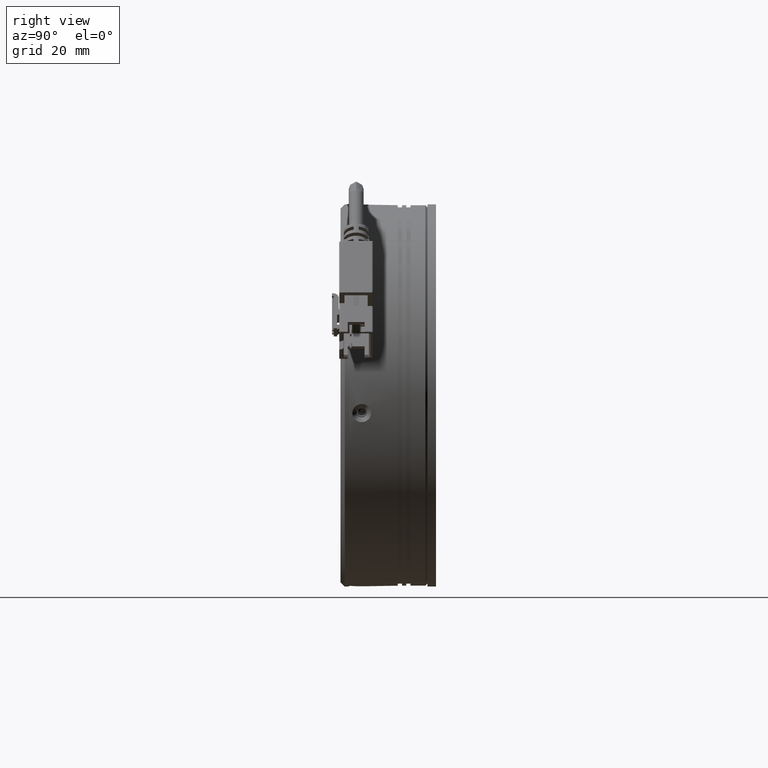
[diagram: clean part render]
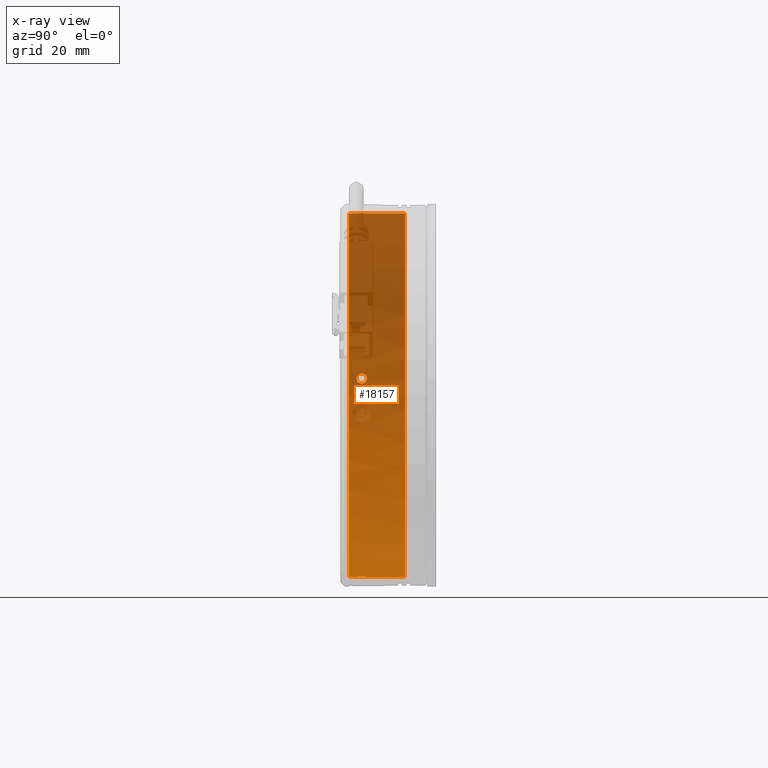
[diagram: x-ray — body ghosted, one internal face saturated and labeled with its STEP entity id]
A machine part, right view, then the same camera in x-ray: the body is ghosted and one INTERNAL B-rep face — a face not visible from any outside direction — is saturated and labeled: STEP entity #18157.
In plain terms, the highlighted cylindrical surface (partial cylindrical patch) has radius 43 mm, axis along (0, -1, 0).
Its self-contained STEP definition (entity closure, byte-faithful):
#534 = CARTESIAN_POINT ( 'NONE',  ( -53.99004085520083900, 10.11989054203920400, -3.797922368083184200 ) ) ;
#609 = CARTESIAN_POINT ( 'NONE',  ( -96.85751770825967800, 22.52740794203347700, -0.4214931607460495900 ) ) ;
#1703 = VERTEX_POINT ( 'NONE', #89147 ) ;
#2559 = ORIENTED_EDGE ( 'NONE', *, *, #53149, .F. ) ;
#2866 = CARTESIAN_POINT ( 'NONE',  ( -96.80562336960153400, 31.65322862557684400, 0.1802548467408904300 ) ) ;
#3951 = EDGE_CURVE ( 'NONE', #48209, #67110, #70471, .T. ) ;
#4386 = FACE_OUTER_BOUND ( 'NONE', #103290, .T. ) ;
#4554 = CARTESIAN_POINT ( 'NONE',  ( -51.20826733921226300, 21.47876601230221300, 39.11200347787633500 ) ) ;
#4925 = AXIS2_PLACEMENT_3D ( 'NONE', #45551, #118412, #56072 ) ;
#5431 = CARTESIAN_POINT ( 'NONE',  ( -57.96821724117763400, 18.47876601230220900, -46.61350495949558600 ) ) ;
#5768 = CARTESIAN_POINT ( 'NONE',  ( -96.80954510899997000, 31.67876601095487400, 0.1379331521673202200 ) ) ;
#6143 = EDGE_CURVE ( 'NONE', #84855, #113624, #36980, .T. ) ;
#6817 = CARTESIAN_POINT ( 'NONE',  ( -51.05703077552374200, 22.08324953597088200, 39.10197360459402200 ) ) ;
#7248 = CARTESIAN_POINT ( 'NONE',  ( -57.96821724117763400, 22.67876601230220100, -46.61350495949558600 ) ) ;
#7255 = CARTESIAN_POINT ( 'NONE',  ( -96.69595082793580300, 20.87401925040273900, 1.222922440470592700 ) ) ;
#7403 = CARTESIAN_POINT ( 'NONE',  ( -50.96763672397546700, 20.74053969547610900, 39.09586889298326200 ) ) ;
#7680 = CARTESIAN_POINT ( 'NONE',  ( -96.89996670116035200, 21.32021693622073900, -1.016148852094848500 ) ) ;
#8131 = ORIENTED_EDGE ( 'NONE', *, *, #3951, .T. ) ;
#9068 = CARTESIAN_POINT ( 'NONE',  ( -57.96821724117605600, 31.65322812544198800, -46.61350495949732700 ) ) ;
#9256 = CARTESIAN_POINT ( 'NONE',  ( -59.12989638319632500, 21.79471032851107600, -46.48967188511356600 ) ) ;
#9425 = CARTESIAN_POINT ( 'NONE',  ( -59.16152130652403000, 21.32029263391762800, -46.48581046226725300 ) ) ;
#9546 = CARTESIAN_POINT ( 'NONE',  ( -57.99642985931386400, 31.67025338339706800, -46.61087657429839500 ) ) ;
#10256 = CARTESIAN_POINT ( 'NONE',  ( -96.80168086924969400, 31.67876601095492000, 0.2225729403210405200 ) ) ;
#11107 = CARTESIAN_POINT ( 'NONE',  ( -96.82017544590824800, 22.67865957059294500, 0.02360433792865126000 ) ) ;
#13669 = VERTEX_POINT ( 'NONE', #7248 ) ;
#16135 = VERTEX_POINT ( 'NONE', #105869 ) ;
#16172 = EDGE_CURVE ( 'NONE', #133128, #112681, #86678, .T. ) ;
#16244 = CARTESIAN_POINT ( 'NONE',  ( -96.80693415343803600, 31.66174075437405800, 0.1661473843850216100 ) ) ;
#17173 = CARTESIAN_POINT ( 'NONE',  ( -50.02597110220634800, 31.66174075438107800, 39.01897093010302300 ) ) ;
#17225 = ORIENTED_EDGE ( 'NONE', *, *, #41765, .F. ) ;
#17305 = CARTESIAN_POINT ( 'NONE',  ( -50.74749785432500500, 22.43767469557632300, 39.07978924203617800 ) ) ;
#17447 = CARTESIAN_POINT ( 'NONE',  ( -50.01186446922403000, 22.67876601230220100, 39.01766022332921600 ) ) ;
#17549 = CARTESIAN_POINT ( 'NONE',  ( -96.80168086924969400, 31.67876601095492000, 0.2225729403210405200 ) ) ;
#17712 = CARTESIAN_POINT ( 'NONE',  ( -96.80562336960153400, 31.65322862557684400, 0.1802548467408904300 ) ) ;
#17720 = CARTESIAN_POINT ( 'NONE',  ( -96.73120243993423600, 20.51953091391165500, 0.9143344957996301100 ) ) ;
#17888 = CARTESIAN_POINT ( 'NONE',  ( -51.17647236101910800, 21.16282169609336000, 39.10997229015048000 ) ) ;
#18157 = ADVANCED_FACE ( 'NONE', ( #59852, #4386 ), #46756, .F. ) ;
#18980 = CARTESIAN_POINT ( 'NONE',  ( -51.20826733921226300, 21.47876601230221300, 39.11200347787633500 ) ) ;
#19190 = CARTESIAN_POINT ( 'NONE',  ( -53.99004085520083900, 31.67876601230221200, -3.797922368083184200 ) ) ;
#19737 = CARTESIAN_POINT ( 'NONE',  ( -59.16152130652402300, 21.47876601230221300, -46.48581046226725300 ) ) ;
#19928 = CARTESIAN_POINT ( 'NONE',  ( -59.16152130652402300, 21.47876601230221300, -46.48581046226725300 ) ) ;
#20115 = CARTESIAN_POINT ( 'NONE',  ( -96.89996670116036600, 21.47876601230221300, -1.016148852094764400 ) ) ;
#20971 = ORIENTED_EDGE ( 'NONE', *, *, #46318, .F. ) ;
#21610 = CARTESIAN_POINT ( 'NONE',  ( -96.77577747926216000, 22.64784701081818200, 0.4918155024610730300 ) ) ;
#21996 = VECTOR ( 'NONE', #109480, 1000.000000000000000 ) ;
#23867 = ORIENTED_EDGE ( 'NONE', *, *, #120116, .F. ) ;
#24143 = CARTESIAN_POINT ( 'NONE',  ( -57.96821724117763400, 10.11989054203920400, -46.61350495949558600 ) ) ;
#24702 = CARTESIAN_POINT ( 'NONE',  ( -53.99004085520083900, 31.67876601230221200, -3.797922368083184200 ) ) ;
#24706 = B_SPLINE_CURVE_WITH_KNOTS ( 'NONE', 3,
 ( #59103, #38097, #17173, #131805 ),
 .UNSPECIFIED., .F., .F.,
 ( 4, 4 ),
 ( 0.0000000000000000000, 1.000000000000000000 ),
 .UNSPECIFIED. ) ;
#25260 = LINE ( 'NONE', #47119, #21996 ) ;
#27772 = EDGE_CURVE ( 'NONE', #51776, #39783, #24706, .T. ) ;
#27773 = CARTESIAN_POINT ( 'NONE',  ( -50.32653876319675100, 22.64691947902560200, 39.04597531702494700 ) ) ;
#28216 = CARTESIAN_POINT ( 'NONE',  ( -96.77555139905590000, 20.31040733600649900, 0.4940391230490607800 ) ) ;
#28385 = CARTESIAN_POINT ( 'NONE',  ( -51.20826733921226300, 21.47876601230221300, 39.11200347787633500 ) ) ;
#29677 = DIRECTION ( 'NONE',  ( -0.09251572990643718000, 0.0000000000000000000, -0.9957112230561023800 ) ) ;
#30030 = EDGE_CURVE ( 'NONE', #13669, #16135, #128411, .T. ) ;
#30443 = CARTESIAN_POINT ( 'NONE',  ( -59.13055851118587500, 21.16479325353773400, -46.48959252541622100 ) ) ;
#31446 = VECTOR ( 'NONE', #106314, 1000.000000000000000 ) ;
#31627 = DIRECTION ( 'NONE',  ( 0.0000000000000000000, -1.000000000000000000, 0.0000000000000000000 ) ) ;
#31642 = AXIS2_PLACEMENT_3D ( 'NONE', #19190, #91942, #29677 ) ;
#32144 = CARTESIAN_POINT ( 'NONE',  ( -96.73142323909094400, 22.43982374782998000, 0.9123639815030434300 ) ) ;
#34596 = EDGE_CURVE ( 'NONE', #89804, #116753, #65664, .T. ) ;
#34933 = CARTESIAN_POINT ( 'NONE',  ( -57.96821724117763400, 20.27876601230222100, -46.61350495949558600 ) ) ;
#35215 = DIRECTION ( 'NONE',  ( -0.09251572990643718000, 0.0000000000000000000, -0.9957112230561023800 ) ) ;
#36980 = B_SPLINE_CURVE_WITH_KNOTS ( 'NONE', 3,
 ( #61492, #71905, #9546, #82308 ),
 .UNSPECIFIED., .F., .F.,
 ( 4, 4 ),
 ( 0.0000000000000000000, 1.000000000000000000 ),
 .UNSPECIFIED. ) ;
#38097 = CARTESIAN_POINT ( 'NONE',  ( -50.04007838290424100, 31.67025338335974300, 39.02027466521391800 ) ) ;
#38238 = CARTESIAN_POINT ( 'NONE',  ( -50.01186446922403000, 22.67876601230220100, 39.01766022332921600 ) ) ;
#38655 = CARTESIAN_POINT ( 'NONE',  ( -96.82003073102922000, 20.27866012275181600, 0.02522589732732118500 ) ) ;
#39783 = VERTEX_POINT ( 'NONE', #103648 ) ;
#39869 = CARTESIAN_POINT ( 'NONE',  ( -58.01053519152217300, 31.67876601233793500, -46.60955192468390600 ) ) ;
#40845 = CARTESIAN_POINT ( 'NONE',  ( -58.92255973357057300, 20.74122319490911800, -46.51422482449459700 ) ) ;
#41765 = EDGE_CURVE ( 'NONE', #16135, #123827, #54369, .T. ) ;
#42085 = CARTESIAN_POINT ( 'NONE',  ( -96.89996670116036600, 21.47876601230221300, -1.016148852094764400 ) ) ;
#42464 = DIRECTION ( 'NONE',  ( -0.09251572990643718000, 0.0000000000000000000, -0.9957112230561023800 ) ) ;
#42532 = CARTESIAN_POINT ( 'NONE',  ( -96.80431268817427800, 31.66174108781863300, 0.1943612039414953100 ) ) ;
#42538 = CARTESIAN_POINT ( 'NONE',  ( -96.69597854806619400, 22.08394947930590700, 1.222687703565670700 ) ) ;
#42559 = CARTESIAN_POINT ( 'NONE',  ( -96.80299503536001300, 31.67025355006042300, 0.2084669134009927100 ) ) ;
#42680 = B_SPLINE_CURVE_WITH_KNOTS ( 'NONE', 3,
 ( #5768, #78546, #16244, #89040 ),
 .UNSPECIFIED., .F., .F.,
 ( 4, 4 ),
 ( 0.0000000000000000000, 1.000000000000000000 ),
 .UNSPECIFIED. ) ;
#45551 = CARTESIAN_POINT ( 'NONE',  ( -53.99004085520083900, 18.47876601230220900, -3.797922368083184200 ) ) ;
#45586 = ORIENTED_EDGE ( 'NONE', *, *, #27772, .T. ) ;
#45972 = AXIS2_PLACEMENT_3D ( 'NONE', #24702, #97485, #35215 ) ;
#46318 = EDGE_CURVE ( 'NONE', #118863, #112681, #117608, .T. ) ;
#46550 = EDGE_CURVE ( 'NONE', #116753, #89804, #116267, .T. ) ;
#46756 = CYLINDRICAL_SURFACE ( 'NONE', #64437, 43.00000000000000000 ) ;
#46979 = ORIENTED_EDGE ( 'NONE', *, *, #30030, .F. ) ;
#47119 = CARTESIAN_POINT ( 'NONE',  ( -50.01186446922403000, 10.11989054203920400, 39.01766022332921600 ) ) ;
#48209 = VERTEX_POINT ( 'NONE', #2866 ) ;
#49148 = CARTESIAN_POINT ( 'NONE',  ( -96.85748812416029800, 20.42974931418126900, -0.4210785599531053900 ) ) ;
#49973 = CARTESIAN_POINT ( 'NONE',  ( -50.05418630618800800, 31.67876601226952400, 39.02157142818928300 ) ) ;
#50699 = CARTESIAN_POINT ( 'NONE',  ( -58.28076009375503500, 22.64758610942670500, -46.58356049526212000 ) ) ;
#51336 = CARTESIAN_POINT ( 'NONE',  ( -58.56973981762219200, 20.43043387962256600, -46.55359069222154700 ) ) ;
#51776 = VERTEX_POINT ( 'NONE', #49973 ) ;
#52600 = CARTESIAN_POINT ( 'NONE',  ( -96.88992728075425000, 22.08351277420170100, -0.8647715254671489700 ) ) ;
#53060 = CARTESIAN_POINT ( 'NONE',  ( -96.67792894938493500, 21.63731515919229800, 1.373558083239857100 ) ) ;
#53149 = EDGE_CURVE ( 'NONE', #84855, #13669, #57777, .T. ) ;
#54314 = ORIENTED_EDGE ( 'NONE', *, *, #55559, .F. ) ;
#54369 = B_SPLINE_CURVE_WITH_KNOTS ( 'NONE', 3,
 ( #19928, #9425, #30443, #103200, #40845, #113711, #51336, #124136, #61813, #134524 ),
 .UNSPECIFIED., .F., .F.,
 ( 4, 2, 2, 2, 4 ),
 ( 0.001874681895584048800, 0.002343352658888708300, 0.002812023422193367400, 0.003280694185498026500, 0.003749364948802686000 ),
 .UNSPECIFIED. ) ;
#54481 = VERTEX_POINT ( 'NONE', #18980 ) ;
#54511 = VECTOR ( 'NONE', #86424, 1000.000000000000000 ) ;
#55559 = EDGE_CURVE ( 'NONE', #54481, #130857, #126388, .T. ) ;
#56072 = DIRECTION ( 'NONE',  ( -0.09251572990643718000, 0.0000000000000000000, -0.9957112230561023800 ) ) ;
#57777 = LINE ( 'NONE', #24143, #54511 ) ;
#58493 = VECTOR ( 'NONE', #96372, 1000.000000000000000 ) ;
#59103 = CARTESIAN_POINT ( 'NONE',  ( -50.05418630618800800, 31.67876601226952400, 39.02157142818928300 ) ) ;
#59278 = ORIENTED_EDGE ( 'NONE', *, *, #61255, .T. ) ;
#59373 = CARTESIAN_POINT ( 'NONE',  ( -50.32457401830372800, 20.30994591517771800, 39.04581059721307700 ) ) ;
#59659 = CARTESIAN_POINT ( 'NONE',  ( -96.88391128082305700, 20.74153070131335100, -0.7765906267907313200 ) ) ;
#59729 = EDGE_LOOP ( 'NONE', ( #108835, #61875 ) ) ;
#59852 = FACE_BOUND ( 'NONE', #59729, .T. ) ;
#61189 = CARTESIAN_POINT ( 'NONE',  ( -58.70202487274481500, 22.43820050859115500, -46.53911399979600100 ) ) ;
#61255 = EDGE_CURVE ( 'NONE', #1703, #48209, #42680, .T. ) ;
#61449 = ORIENTED_EDGE ( 'NONE', *, *, #66030, .F. ) ;
#61492 = CARTESIAN_POINT ( 'NONE',  ( -57.96821724117605600, 31.65322812544198800, -46.61350495949732700 ) ) ;
#61813 = CARTESIAN_POINT ( 'NONE',  ( -58.12601086481245000, 20.27876601230218900, -46.59884368830860500 ) ) ;
#61875 = ORIENTED_EDGE ( 'NONE', *, *, #34596, .F. ) ;
#63062 = CARTESIAN_POINT ( 'NONE',  ( -96.86772184911062300, 22.43800111069277400, -0.5549714051471990000 ) ) ;
#64437 = AXIS2_PLACEMENT_3D ( 'NONE', #534, #31627, #42464 ) ;
#64989 = CARTESIAN_POINT ( 'NONE',  ( -57.96821724117763400, 10.11989054203920400, -46.61350495949558600 ) ) ;
#65664 = B_SPLINE_CURVE_WITH_KNOTS ( 'NONE', 3,
 ( #42085, #114506, #73019, #52600, #125388, #63062, #609, #73485, #11107, #83909, #21610, #94385, #32144, #104926, #42538, #115403, #53060, #125824 ),
 .UNSPECIFIED., .F., .F.,
 ( 4, 2, 2, 2, 2, 2, 2, 2, 4 ),
 ( 0.003751155575174307400, 0.004220050126775160200, 0.004688944678376012900, 0.005157839229976866500, 0.005626733781577719300, 0.006095628333178572000, 0.006564522884779424800, 0.007033417436380277500, 0.007502311987981130300 ),
 .UNSPECIFIED. ) ;
#66030 = EDGE_CURVE ( 'NONE', #1703, #113624, #97774, .T. ) ;
#67110 = VERTEX_POINT ( 'NONE', #10256 ) ;
#68064 = B_SPLINE_CURVE_WITH_KNOTS ( 'NONE', 3,
 ( #90209, #100722, #59373, #132061, #69750, #7403, #80187, #17888, #90650, #28385 ),
 .UNSPECIFIED., .F., .F.,
 ( 4, 2, 2, 2, 4 ),
 ( 0.0000000000000000000, 0.0004686704738960180500, 0.0009373409477920360900, 0.001406011421688054200, 0.001874681895584072200 ),
 .UNSPECIFIED. ) ;
#69167 = CARTESIAN_POINT ( 'NONE',  ( -51.17713777555357500, 21.79273877106668100, 39.11001627802897200 ) ) ;
#69606 = CARTESIAN_POINT ( 'NONE',  ( -96.68171485812949600, 21.16464001443673500, 1.342563992037908900 ) ) ;
#69750 = CARTESIAN_POINT ( 'NONE',  ( -50.74681618080435900, 20.51933151601326000, 39.07973788981537700 ) ) ;
#70057 = CARTESIAN_POINT ( 'NONE',  ( -96.89797359824909500, 21.16435798182838800, -0.9849262009176985600 ) ) ;
#70471 = B_SPLINE_CURVE_WITH_KNOTS ( 'NONE', 3,
 ( #17712, #42532, #42559, #17549 ),
 .UNSPECIFIED., .F., .F.,
 ( 4, 4 ),
 ( 1.958528762031069600E-005, 1.000000000000000000 ),
 .UNSPECIFIED. ) ;
#71614 = CARTESIAN_POINT ( 'NONE',  ( -59.01087473947404800, 22.08325179611435700, -46.50383318590866100 ) ) ;
#71905 = CARTESIAN_POINT ( 'NONE',  ( -57.98232387409957100, 31.66174075440059700, -46.61219425272943100 ) ) ;
#73019 = CARTESIAN_POINT ( 'NONE',  ( -96.89797751519418500, 21.79289201016769400, -0.9849878198004277100 ) ) ;
#73485 = CARTESIAN_POINT ( 'NONE',  ( -96.83387729119319000, 22.64712468859792000, -0.1337000241704109400 ) ) ;
#77716 = EDGE_CURVE ( 'NONE', #51776, #67110, #96707, .T. ) ;
#78182 = ORIENTED_EDGE ( 'NONE', *, *, #16172, .T. ) ;
#78546 = CARTESIAN_POINT ( 'NONE',  ( -96.80823788860273300, 31.67025338333813500, 0.1520401031102260900 ) ) ;
#79522 = LINE ( 'NONE', #64989, #58493 ) ;
#79564 = CARTESIAN_POINT ( 'NONE',  ( -96.67792894938493500, 21.47876601230221300, 1.373558083239857300 ) ) ;
#79589 = CARTESIAN_POINT ( 'NONE',  ( -50.96816138460680900, 22.21630882969532200, 39.09590565528512200 ) ) ;
#80025 = CARTESIAN_POINT ( 'NONE',  ( -96.70636940243962000, 20.74091500213872800, 1.134372615780986100 ) ) ;
#80187 = CARTESIAN_POINT ( 'NONE',  ( -51.05687911961158000, 20.87428022849007200, 39.10196287542770900 ) ) ;
#80476 = CARTESIAN_POINT ( 'NONE',  ( -96.89996670116036600, 21.47876601230221300, -1.016148852094764400 ) ) ;
#82020 = CARTESIAN_POINT ( 'NONE',  ( -59.16152130652403000, 21.63723929282797800, -46.48581046226726000 ) ) ;
#82308 = CARTESIAN_POINT ( 'NONE',  ( -58.01053519152217300, 31.67876601233793500, -46.60955192468390600 ) ) ;
#83909 = CARTESIAN_POINT ( 'NONE',  ( -96.79122204696321300, 22.67887190185259900, 0.3352826852380393400 ) ) ;
#84855 = VERTEX_POINT ( 'NONE', #9068 ) ;
#86424 = DIRECTION ( 'NONE',  ( 0.0000000000000000000, -1.000000000000000000, 0.0000000000000000000 ) ) ;
#86678 = LINE ( 'NONE', #116814, #31446 ) ;
#89040 = CARTESIAN_POINT ( 'NONE',  ( -96.80562336960153400, 31.65322862557684400, 0.1802548467408904300 ) ) ;
#89147 = CARTESIAN_POINT ( 'NONE',  ( -96.80954510899997000, 31.67876601095487400, 0.1379331521673202200 ) ) ;
#89627 = CARTESIAN_POINT ( 'NONE',  ( -51.20826733921217800, 21.63723939068742300, 39.11200347787632100 ) ) ;
#89804 = VERTEX_POINT ( 'NONE', #20115 ) ;
#90068 = CARTESIAN_POINT ( 'NONE',  ( -50.61412846823255100, 22.52709814498186000, 39.06959484466949600 ) ) ;
#90209 = CARTESIAN_POINT ( 'NONE',  ( -50.01186446922403000, 20.27876601230222100, 39.01766022332921600 ) ) ;
#90500 = CARTESIAN_POINT ( 'NONE',  ( -96.74576472843563100, 20.43012408257095600, 0.7812611852804995900 ) ) ;
#90650 = CARTESIAN_POINT ( 'NONE',  ( -51.20826733921236200, 21.32029273177708000, 39.11200347787634300 ) ) ;
#91622 = ORIENTED_EDGE ( 'NONE', *, *, #6143, .T. ) ;
#91942 = DIRECTION ( 'NONE',  ( 0.0000000000000000000, -1.000000000000000000, 0.0000000000000000000 ) ) ;
#94385 = CARTESIAN_POINT ( 'NONE',  ( -96.74581203594623000, 22.52778271042315000, 0.7808482312444399200 ) ) ;
#95191 = ORIENTED_EDGE ( 'NONE', *, *, #114151, .F. ) ;
#96372 = DIRECTION ( 'NONE',  ( 0.0000000000000000000, -1.000000000000000000, 0.0000000000000000000 ) ) ;
#96707 = CIRCLE ( 'NONE', #45972, 43.00000000000000000 ) ;
#97485 = DIRECTION ( 'NONE',  ( 0.0000000000000000000, -1.000000000000000000, 0.0000000000000000000 ) ) ;
#97774 = CIRCLE ( 'NONE', #31642, 43.00000000000000000 ) ;
#100595 = CARTESIAN_POINT ( 'NONE',  ( -50.16965809285910900, 22.67876601230220100, 39.03232149451623200 ) ) ;
#100722 = CARTESIAN_POINT ( 'NONE',  ( -50.16965819016129300, 20.27876601230221400, 39.03232150355699300 ) ) ;
#100894 = ORIENTED_EDGE ( 'NONE', *, *, #102307, .T. ) ;
#101030 = CARTESIAN_POINT ( 'NONE',  ( -96.79106553186635200, 20.27887245401148100, 0.3369031482287027100 ) ) ;
#102307 = EDGE_CURVE ( 'NONE', #39783, #130857, #25260, .T. ) ;
#102578 = CARTESIAN_POINT ( 'NONE',  ( -57.96821724117763400, 22.67876601230220100, -46.61350495949558600 ) ) ;
#103200 = CARTESIAN_POINT ( 'NONE',  ( -59.01102577601075400, 20.87428248863354300, -46.50381579064270500 ) ) ;
#103290 = EDGE_LOOP ( 'NONE', ( #45586, #100894, #54314, #95191, #78182, #20971, #23867, #17225, #46979, #2559, #91622, #61449, #59278, #8131, #112174 ) ) ;
#103648 = CARTESIAN_POINT ( 'NONE',  ( -50.01186446922126500, 31.65322812541536400, 39.01766022335910800 ) ) ;
#104926 = CARTESIAN_POINT ( 'NONE',  ( -96.70628407551390600, 22.21600132329108800, 1.135142675484311500 ) ) ;
#105869 = CARTESIAN_POINT ( 'NONE',  ( -59.16152130652402300, 21.47876601230221300, -46.48581046226725300 ) ) ;
#106314 = DIRECTION ( 'NONE',  ( 0.0000000000000000000, -1.000000000000000000, 0.0000000000000000000 ) ) ;
#108835 = ORIENTED_EDGE ( 'NONE', *, *, #46550, .F. ) ;
#109480 = DIRECTION ( 'NONE',  ( 0.0000000000000000000, -1.000000000000000000, 0.0000000000000000000 ) ) ;
#109613 = CARTESIAN_POINT ( 'NONE',  ( -96.67792894938493500, 21.47876601230221300, 1.373558083239857300 ) ) ;
#111073 = CARTESIAN_POINT ( 'NONE',  ( -96.67792894938492100, 21.32021690081612400, 1.373558083239857300 ) ) ;
#111529 = CARTESIAN_POINT ( 'NONE',  ( -96.83368982609593400, 20.30968501378623600, -0.1314728156897529400 ) ) ;
#112174 = ORIENTED_EDGE ( 'NONE', *, *, #77716, .F. ) ;
#112394 = CARTESIAN_POINT ( 'NONE',  ( -50.01186446922403000, 20.27876601230222100, 39.01766022332921600 ) ) ;
#112681 = VERTEX_POINT ( 'NONE', #124845 ) ;
#113090 = CARTESIAN_POINT ( 'NONE',  ( -58.12601096211489700, 22.67876601230220500, -46.59884367926780900 ) ) ;
#113624 = VERTEX_POINT ( 'NONE', #39869 ) ;
#113711 = CARTESIAN_POINT ( 'NONE',  ( -58.70270433818497900, 20.51985732902811700, -46.53903888285432100 ) ) ;
#114151 = EDGE_CURVE ( 'NONE', #133128, #54481, #68064, .T. ) ;
#114506 = CARTESIAN_POINT ( 'NONE',  ( -96.89996670116035200, 21.63731512378893000, -1.016148852094681500 ) ) ;
#115403 = CARTESIAN_POINT ( 'NONE',  ( -96.68172236076956900, 21.79317404277602000, 1.342502706317228100 ) ) ;
#116267 = B_SPLINE_CURVE_WITH_KNOTS ( 'NONE', 3,
 ( #79564, #111073, #69606, #7255, #80025, #17720, #90500, #28216, #101030, #38655, #111529, #49148, #121961, #59659, #132353, #70057, #7680, #80476 ),
 .UNSPECIFIED., .F., .F.,
 ( 4, 2, 2, 2, 2, 2, 2, 2, 4 ),
 ( 0.0000000000000000000, 0.0004688944468967884300, 0.0009377888937935768600, 0.001406683340690365400, 0.001875577787587153700, 0.002344472234483942000, 0.002813366681380730800, 0.003282261128277519100, 0.003751155575174307400 ),
 .UNSPECIFIED. ) ;
#116753 = VERTEX_POINT ( 'NONE', #109613 ) ;
#116814 = CARTESIAN_POINT ( 'NONE',  ( -50.01186446922403000, 10.11989054203920400, 39.01766022332921600 ) ) ;
#117608 = CIRCLE ( 'NONE', #4925, 43.00000000000000000 ) ;
#118412 = DIRECTION ( 'NONE',  ( -0.0000000000000000000, 1.000000000000000000, -0.0000000000000000000 ) ) ;
#118863 = VERTEX_POINT ( 'NONE', #5431 ) ;
#120116 = EDGE_CURVE ( 'NONE', #123827, #118863, #79522, .T. ) ;
#121961 = CARTESIAN_POINT ( 'NONE',  ( -96.86757582513840200, 20.51770827677443900, -0.5529939431728031500 ) ) ;
#123511 = CARTESIAN_POINT ( 'NONE',  ( -58.56973787702020900, 22.52725014303103300, -46.55359423419172100 ) ) ;
#123827 = VERTEX_POINT ( 'NONE', #34933 ) ;
#124136 = CARTESIAN_POINT ( 'NONE',  ( -58.28272155314756700, 20.31061254557882000, -46.58336041487204700 ) ) ;
#124845 = CARTESIAN_POINT ( 'NONE',  ( -50.01186446922403000, 18.47876601230220900, 39.01766022332921600 ) ) ;
#125388 = CARTESIAN_POINT ( 'NONE',  ( -96.88385327291162200, 22.21661702246569800, -0.7758180287625345800 ) ) ;
#125824 = CARTESIAN_POINT ( 'NONE',  ( -96.67792894938493500, 21.47876601230221300, 1.373558083239857300 ) ) ;
#126388 = B_SPLINE_CURVE_WITH_KNOTS ( 'NONE', 3,
 ( #4554, #89627, #69167, #6817, #79589, #17305, #90068, #27773, #100595, #38238 ),
 .UNSPECIFIED., .F., .F.,
 ( 4, 2, 2, 2, 4 ),
 ( 0.001874681895584072200, 0.002343352658888732600, 0.002812023422193392500, 0.003280694185498052900, 0.003749364948802713300 ),
 .UNSPECIFIED. ) ;
#128411 = B_SPLINE_CURVE_WITH_KNOTS ( 'NONE', 3,
 ( #102578, #113090, #50699, #123511, #61189, #133899, #71614, #9256, #82020, #19737 ),
 .UNSPECIFIED., .F., .F.,
 ( 4, 2, 2, 2, 4 ),
 ( 6.938893903907228400E-018, 0.0004686704738960174000, 0.0009373409477920278500, 0.001406011421688038200, 0.001874681895584048800 ),
 .UNSPECIFIED. ) ;
#130857 = VERTEX_POINT ( 'NONE', #17447 ) ;
#131805 = CARTESIAN_POINT ( 'NONE',  ( -50.01186446922126500, 31.65322812541536400, 39.01766022335910800 ) ) ;
#132061 = CARTESIAN_POINT ( 'NONE',  ( -50.61412590828523900, 20.43028188157337900, 39.06959796847463200 ) ) ;
#132353 = CARTESIAN_POINT ( 'NONE',  ( -96.88991127892792600, 20.87358254529853200, -0.8645356997651765200 ) ) ;
#133128 = VERTEX_POINT ( 'NONE', #112394 ) ;
#133899 = CARTESIAN_POINT ( 'NONE',  ( -58.92203728123876500, 22.21699232912831700, -46.51428535387514500 ) ) ;
#134524 = CARTESIAN_POINT ( 'NONE',  ( -57.96821724117763400, 20.27876601230222100, -46.61350495949558600 ) ) ;